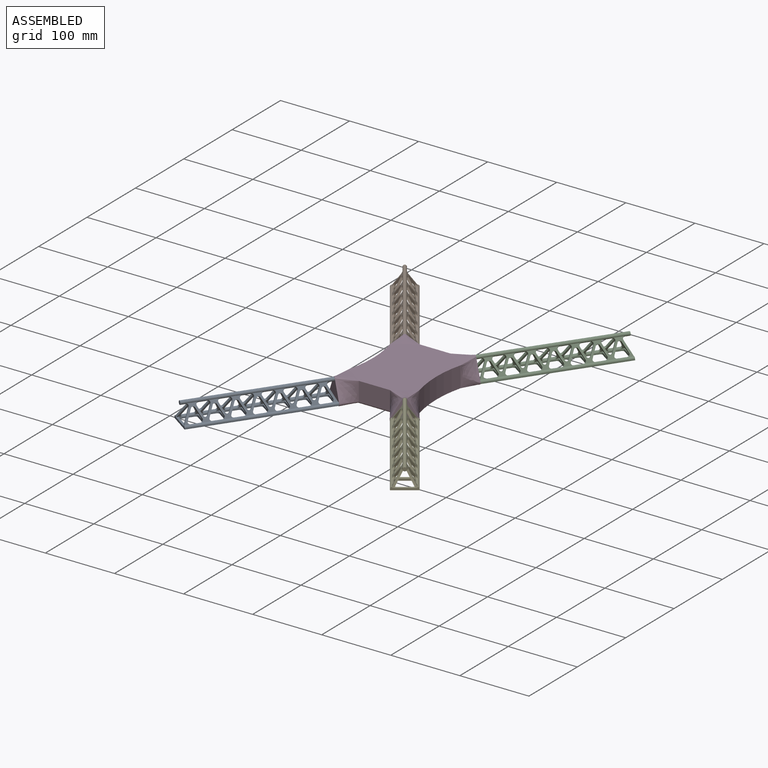
[diagram: assembled view]
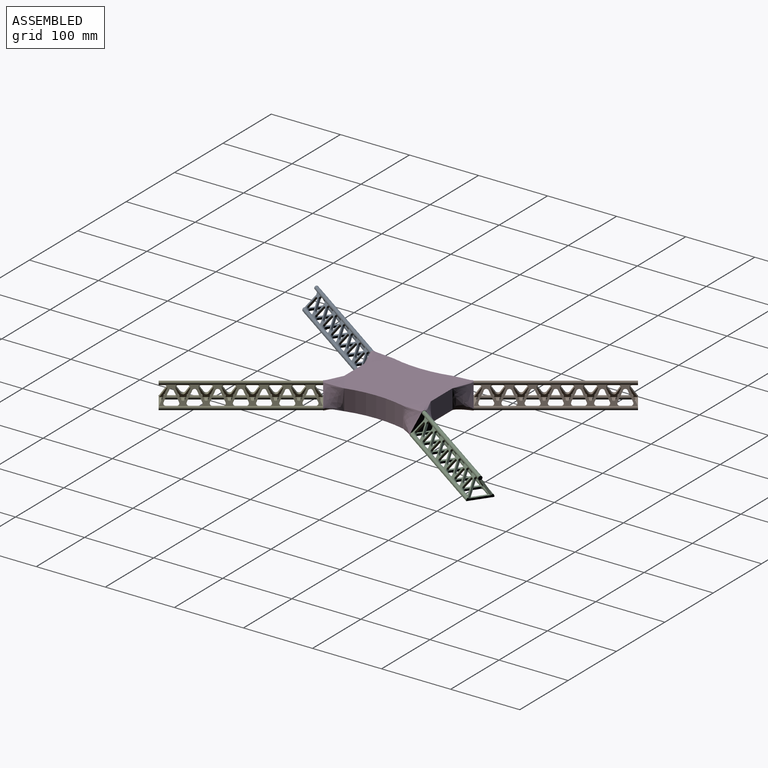
[diagram: assembled view, second angle]
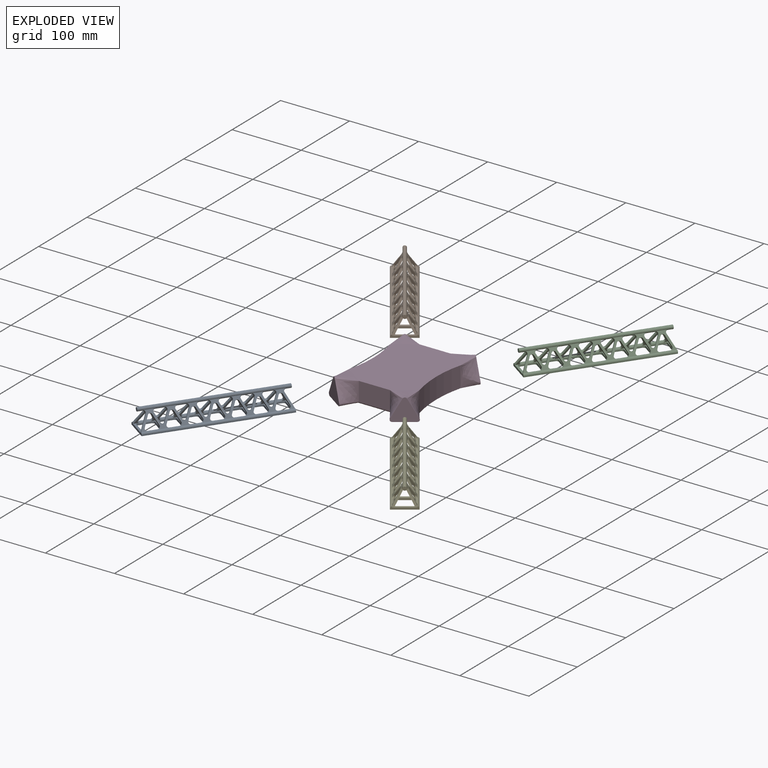
[diagram: exploded view]
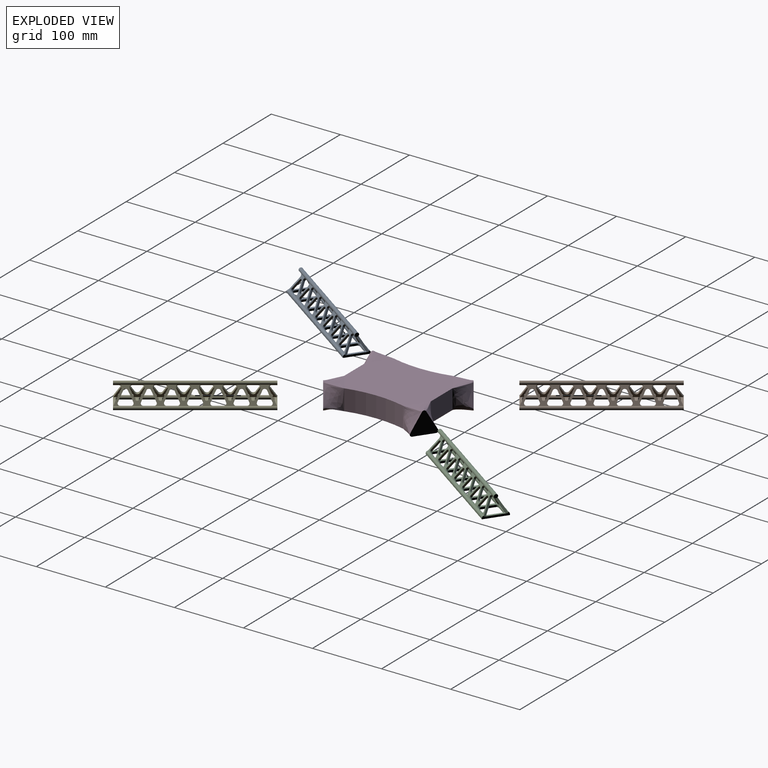
[diagram: exploded view, second angle]
ASSEMBLY  parts=5 mates=4
PART A: 248 faces, bbox 35.7x195.3x30.4 mm
  f0: cylinder r=2.7mm len=195mm, axis (0,1,0), area 1239.5mm2, adj f6,f10,f12,f13,f26,f27,f29,f32
  f1: cylinder r=2.7mm len=195mm, axis (0,1,0), area 1239.5mm2, adj f7,f10,f14,f15,f19,f21,f22,f23
  f2: plane 12.76x9.1mm, normal (-0.21,0.91,0.36), area 42.4mm2, adj f17,f21,f36,f236
  f3: plane 12.76x9.1mm, normal (0.21,0.91,0.36), area 42.4mm2, adj f29,f33,f37,f237
  f4: plane 24.99x7.66mm, normal (0,0,1), area 107.2mm2, adj f9,f36,f37,f39,f45,f51,f72,f74
  f5: plane 29.38x5.17mm, normal (0,0,1), area 85.7mm2, adj f8,f10,f19,f32,f36,f37,f41,f43
  f6: plane 0.97x0.38mm, normal (1,0,0), area 0.2mm2, adj f0,f10,f32
  f7: plane 0.97x0.38mm, normal (-1,0,0), area 0.2mm2, adj f1,f10,f19
  f8: plane 19x3mm, normal (0,1,0), area 56mm2, adj f5,f11,f40,f41,f42,f43
  f9: plane 19x3mm, normal (0,-1,0), area 56mm2, adj f4,f11,f38,f39,f44,f45
  f10: plane 35.4x4.2mm, normal (0,-1,0), area 109.6mm2, adj f0,f1,f5,f6,f7,f11,f13,f14
  f11: plane 195x35.4mm, normal (0,0,-1), area 2925.9mm2, adj f8,f9,f10,f12,f13,f14,f15,f38
  f12: plane 17.41x1.5mm, normal (1,0,0), area 26.1mm2, adj f0,f11,f42,f44
  f13: plane 195x1.5mm, normal (-1,0,0), area 292.5mm2, adj f0,f10,f11,f208
  f14: plane 195x1.5mm, normal (1,0,0), area 292.5mm2, adj f1,f10,f11,f208
  f15: plane 17.41x1.5mm, normal (-1,0,0), area 26.1mm2, adj f1,f11,f38,f40
  f16: bspline ~6.15x5.7mm, area 18.7mm2, adj f19,f21,f34,f35,f36
  f17: bspline ~6.15x5.7mm, area 18.7mm2, adj f2,f21,f33,f35,f36
  f18: plane 14.06x9.85mm, normal (0.21,0.91,-0.36), area 47.4mm2, adj f21,f22,f24,f36
  f19: plane 19.39x13.11mm, normal (-0.21,-0.91,0.36), area 69.8mm2, adj f1,f5,f7,f10,f16,f21,f36
  f20: plane 14.06x9.85mm, normal (0.21,-0.91,-0.36), area 47.4mm2, adj f21,f23,f24,f36
  f21: plane 194.32x22.09mm, normal (0.87,0,0.5), area 1431.9mm2, adj f1,f2,f16,f17,f18,f19,f20,f22
  f22: bspline ~6.16x5.7mm, area 18.7mm2, adj f1,f18,f21,f36
  f23: bspline ~6.16x5.7mm, area 18.7mm2, adj f1,f20,f21,f36
  f24: cylinder r=3mm len=5.46mm, axis (-0.87,0,-0.5), area 20.6mm2, adj f18,f20,f21,f36
  f25: cylinder r=3mm len=5.46mm, axis (0.87,0,-0.5), area 20.6mm2, adj f29,f30,f31,f37
  f26: bspline ~6.16x5.7mm, area 18.7mm2, adj f0,f29,f30,f37
  f27: bspline ~6.16x5.7mm, area 18.7mm2, adj f0,f29,f31,f37
  f28: plane 5.4x5.4mm, normal (0,-1,0), area 22.9mm2, adj f35
  f29: plane 194.32x22.09mm, normal (-0.87,0,0.5), area 1431.9mm2, adj f0,f3,f25,f26,f27,f30,f31,f32
  f30: plane 14.06x9.85mm, normal (-0.21,0.91,-0.36), area 47.4mm2, adj f25,f26,f29,f37
  f31: plane 14.06x9.85mm, normal (-0.21,-0.91,-0.36), area 47.4mm2, adj f25,f27,f29,f37
  f32: plane 19.39x13.11mm, normal (0.21,-0.91,0.36), area 69.8mm2, adj f0,f5,f6,f10,f29,f34,f37
  f33: bspline ~6.15x5.7mm, area 18.7mm2, adj f3,f17,f29,f35,f37
  f34: bspline ~6.15x5.7mm, area 18.7mm2, adj f16,f29,f32,f35,f37
  f35: cylinder r=2.7mm len=195mm, axis (0,-1,0), area 2673.6mm2, adj f16,f17,f21,f28,f29,f33,f34,f55
  f36: plane 194.25x22.04mm, normal (-0.87,0,-0.5), area 1378mm2, adj f1,f2,f4,f5,f16,f17,f18,f19
  f37: plane 194.25x22.04mm, normal (0.87,0,-0.5), area 1378mm2, adj f0,f3,f4,f5,f25,f26,f27,f30
  f38: cylinder r=3mm len=3mm, axis (0,0,1), area 7.1mm2, adj f9,f11,f15,f39
  f39: torus R=5.7mm, axis (0,1,0), area 7.2mm2, adj f1,f4,f9,f36,f38
  f40: cylinder r=3mm len=3mm, axis (0,0,-1), area 7.1mm2, adj f8,f11,f15,f41
  f41: torus R=5.7mm, axis (0,1,0), area 7.2mm2, adj f1,f5,f8,f36,f40
  f42: cylinder r=3mm len=3mm, axis (0,0,1), area 7.1mm2, adj f8,f11,f12,f43
  f43: torus R=5.7mm, axis (0,1,0), area 7.2mm2, adj f0,f5,f8,f37,f42
  f44: cylinder r=3mm len=3mm, axis (0,0,-1), area 7.1mm2, adj f9,f11,f12,f45
  f45: torus R=5.7mm, axis (0,1,0), area 7.2mm2, adj f0,f4,f9,f37,f44
  f46: plane 12.76x9.1mm, normal (-0.21,-0.91,0.36), area 42.4mm2, adj f21,f36,f55,f236
  f47: plane 12.76x9.1mm, normal (0.21,-0.91,0.36), area 42.4mm2, adj f29,f37,f68,f237
  f48: plane 12.76x9.1mm, normal (-0.21,0.91,0.36), area 42.4mm2, adj f21,f36,f56,f238
  f49: plane 12.76x9.1mm, normal (0.21,0.91,0.36), area 42.4mm2, adj f29,f37,f67,f239
  f50: plane 24.99x7.66mm, normal (0,0,1), area 107.2mm2, adj f36,f37,f52,f70,f76,f82,f103,f105
  f51: plane 19x3mm, normal (0,1,0), area 56mm2, adj f4,f11,f71,f72,f73,f74
  f52: plane 19x3mm, normal (0,-1,0), area 56mm2, adj f11,f50,f69,f70,f75,f76
  f53: plane 17.41x1.5mm, normal (1,0,0), area 26.1mm2, adj f0,f11,f73,f75
  f54: plane 17.41x1.5mm, normal (-1,0,0), area 26.1mm2, adj f1,f11,f69,f71
  f55: bspline ~6.15x5.7mm, area 18.7mm2, adj f21,f35,f36,f46,f68
  f56: bspline ~6.15x5.7mm, area 18.7mm2, adj f21,f35,f36,f48,f67
  f57: plane 14.06x9.85mm, normal (0.21,0.91,-0.36), area 47.4mm2, adj f21,f36,f59,f61
  f58: plane 14.06x9.85mm, normal (0.21,-0.91,-0.36), area 47.4mm2, adj f21,f36,f60,f61
  f59: bspline ~6.16x5.7mm, area 18.7mm2, adj f1,f21,f36,f57
  f60: bspline ~6.16x5.7mm, area 18.7mm2, adj f1,f21,f36,f58
  f61: cylinder r=3mm len=5.46mm, axis (-0.87,0,-0.5), area 20.6mm2, adj f21,f36,f57,f58
  f62: cylinder r=3mm len=5.46mm, axis (0.87,0,-0.5), area 20.6mm2, adj f29,f37,f65,f66
  f63: bspline ~6.16x5.7mm, area 18.7mm2, adj f0,f29,f37,f65
  f64: bspline ~6.16x5.7mm, area 18.7mm2, adj f0,f29,f37,f66
  f65: plane 14.06x9.85mm, normal (-0.21,0.91,-0.36), area 47.4mm2, adj f29,f37,f62,f63
  f66: plane 14.06x9.85mm, normal (-0.21,-0.91,-0.36), area 47.4mm2, adj f29,f37,f62,f64
  f67: bspline ~6.15x5.7mm, area 18.7mm2, adj f29,f35,f37,f49,f56
  f68: bspline ~6.15x5.7mm, area 18.7mm2, adj f29,f35,f37,f47,f55
  f69: cylinder r=3mm len=3mm, axis (0,0,1), area 7.1mm2, adj f11,f52,f54,f70
  f70: torus R=5.7mm, axis (0,1,0), area 7.2mm2, adj f1,f36,f50,f52,f69
  f71: cylinder r=3mm len=3mm, axis (0,0,-1), area 7.1mm2, adj f11,f51,f54,f72
  f72: torus R=5.7mm, axis (0,1,0), area 7.2mm2, adj f1,f4,f36,f51,f71
  f73: cylinder r=3mm len=3mm, axis (0,0,1), area 7.1mm2, adj f11,f51,f53,f74
  f74: torus R=5.7mm, axis (0,1,0), area 7.2mm2, adj f0,f4,f37,f51,f73
  f75: cylinder r=3mm len=3mm, axis (0,0,-1), area 7.1mm2, adj f11,f52,f53,f76
  f76: torus R=5.7mm, axis (0,1,0), area 7.2mm2, adj f0,f37,f50,f52,f75
  f77: plane 12.76x9.1mm, normal (-0.21,-0.91,0.36), area 42.4mm2, adj f21,f36,f86,f238
  f78: plane 12.76x9.1mm, normal (0.21,-0.91,0.36), area 42.4mm2, adj f29,f37,f99,f239
  f79: plane 12.76x9.1mm, normal (-0.21,0.91,0.36), area 42.4mm2, adj f21,f36,f87,f240
  f80: plane 12.76x9.1mm, normal (0.21,0.91,0.36), area 42.4mm2, adj f29,f37,f98,f241
  f81: plane 24.99x7.66mm, normal (0,0,1), area 107.2mm2, adj f36,f37,f83,f101,f107,f113,f134,f136
  f82: plane 19x3mm, normal (0,1,0), area 56mm2, adj f11,f50,f102,f103,f104,f105
  f83: plane 19x3mm, normal (0,-1,0), area 56mm2, adj f11,f81,f100,f101,f106,f107
  f84: plane 17.41x1.5mm, normal (1,0,0), area 26.1mm2, adj f0,f11,f104,f106
  f85: plane 17.41x1.5mm, normal (-1,0,0), area 26.1mm2, adj f1,f11,f100,f102
  f86: bspline ~6.15x5.7mm, area 18.7mm2, adj f21,f35,f36,f77,f99
  f87: bspline ~6.15x5.7mm, area 18.7mm2, adj f21,f35,f36,f79,f98
  f88: plane 14.06x9.85mm, normal (0.21,0.91,-0.36), area 47.4mm2, adj f21,f36,f90,f92
  f89: plane 14.06x9.85mm, normal (0.21,-0.91,-0.36), area 47.4mm2, adj f21,f36,f91,f92
  f90: bspline ~6.16x5.7mm, area 18.7mm2, adj f1,f21,f36,f88
  f91: bspline ~6.16x5.7mm, area 18.7mm2, adj f1,f21,f36,f89
  f92: cylinder r=3mm len=5.46mm, axis (-0.87,0,-0.5), area 20.6mm2, adj f21,f36,f88,f89
  f93: cylinder r=3mm len=5.46mm, axis (0.87,0,-0.5), area 20.6mm2, adj f29,f37,f96,f97
  f94: bspline ~6.16x5.7mm, area 18.7mm2, adj f0,f29,f37,f96
  f95: bspline ~6.16x5.7mm, area 18.7mm2, adj f0,f29,f37,f97
  f96: plane 14.06x9.85mm, normal (-0.21,0.91,-0.36), area 47.4mm2, adj f29,f37,f93,f94
  f97: plane 14.06x9.85mm, normal (-0.21,-0.91,-0.36), area 47.4mm2, adj f29,f37,f93,f95
  f98: bspline ~6.15x5.7mm, area 18.7mm2, adj f29,f35,f37,f80,f87
  f99: bspline ~6.15x5.7mm, area 18.7mm2, adj f29,f35,f37,f78,f86
  f100: cylinder r=3mm len=3mm, axis (0,0,1), area 7.1mm2, adj f11,f83,f85,f101
  f101: torus R=5.7mm, axis (0,1,0), area 7.2mm2, adj f1,f36,f81,f83,f100
  f102: cylinder r=3mm len=3mm, axis (0,0,-1), area 7.1mm2, adj f11,f82,f85,f103
  f103: torus R=5.7mm, axis (0,1,0), area 7.2mm2, adj f1,f36,f50,f82,f102
  f104: cylinder r=3mm len=3mm, axis (0,0,1), area 7.1mm2, adj f11,f82,f84,f105
  f105: torus R=5.7mm, axis (0,1,0), area 7.2mm2, adj f0,f37,f50,f82,f104
  f106: cylinder r=3mm len=3mm, axis (0,0,-1), area 7.1mm2, adj f11,f83,f84,f107
  f107: torus R=5.7mm, axis (0,1,0), area 7.2mm2, adj f0,f37,f81,f83,f106
  f108: plane 12.76x9.1mm, normal (-0.21,-0.91,0.36), area 42.4mm2, adj f21,f36,f117,f240
  f109: plane 12.76x9.1mm, normal (0.21,-0.91,0.36), area 42.4mm2, adj f29,f37,f130,f241
  f110: plane 12.76x9.1mm, normal (-0.21,0.91,0.36), area 42.4mm2, adj f21,f36,f118,f242
  f111: plane 12.76x9.1mm, normal (0.21,0.91,0.36), area 42.4mm2, adj f29,f37,f129,f243
  f112: plane 24.99x7.66mm, normal (0,0,1), area 107.2mm2, adj f36,f37,f114,f132,f138,f144,f165,f167
  f113: plane 19x3mm, normal (0,1,0), area 56mm2, adj f11,f81,f133,f134,f135,f136
  f114: plane 19x3mm, normal (0,-1,0), area 56mm2, adj f11,f112,f131,f132,f137,f138
  f115: plane 17.41x1.5mm, normal (1,0,0), area 26.1mm2, adj f0,f11,f135,f137
  f116: plane 17.41x1.5mm, normal (-1,0,0), area 26.1mm2, adj f1,f11,f131,f133
  f117: bspline ~6.15x5.7mm, area 18.7mm2, adj f21,f35,f36,f108,f130
  f118: bspline ~6.15x5.7mm, area 18.7mm2, adj f21,f35,f36,f110,f129
  f119: plane 14.06x9.85mm, normal (0.21,0.91,-0.36), area 47.4mm2, adj f21,f36,f121,f123
  f120: plane 14.06x9.85mm, normal (0.21,-0.91,-0.36), area 47.4mm2, adj f21,f36,f122,f123
  f121: bspline ~6.16x5.7mm, area 18.7mm2, adj f1,f21,f36,f119
  f122: bspline ~6.16x5.7mm, area 18.7mm2, adj f1,f21,f36,f120
  f123: cylinder r=3mm len=5.46mm, axis (-0.87,0,-0.5), area 20.6mm2, adj f21,f36,f119,f120
  f124: cylinder r=3mm len=5.46mm, axis (0.87,0,-0.5), area 20.6mm2, adj f29,f37,f127,f128
  f125: bspline ~6.16x5.7mm, area 18.7mm2, adj f0,f29,f37,f127
  f126: bspline ~6.16x5.7mm, area 18.7mm2, adj f0,f29,f37,f128
  f127: plane 14.06x9.85mm, normal (-0.21,0.91,-0.36), area 47.4mm2, adj f29,f37,f124,f125
  f128: plane 14.06x9.85mm, normal (-0.21,-0.91,-0.36), area 47.4mm2, adj f29,f37,f124,f126
  f129: bspline ~6.15x5.7mm, area 18.7mm2, adj f29,f35,f37,f111,f118
  f130: bspline ~6.15x5.7mm, area 18.7mm2, adj f29,f35,f37,f109,f117
  f131: cylinder r=3mm len=3mm, axis (0,0,1), area 7.1mm2, adj f11,f114,f116,f132
  f132: torus R=5.7mm, axis (0,1,0), area 7.2mm2, adj f1,f36,f112,f114,f131
  f133: cylinder r=3mm len=3mm, axis (0,0,-1), area 7.1mm2, adj f11,f113,f116,f134
  f134: torus R=5.7mm, axis (0,1,0), area 7.2mm2, adj f1,f36,f81,f113,f133
  f135: cylinder r=3mm len=3mm, axis (0,0,1), area 7.1mm2, adj f11,f113,f115,f136
  f136: torus R=5.7mm, axis (0,1,0), area 7.2mm2, adj f0,f37,f81,f113,f135
  f137: cylinder r=3mm len=3mm, axis (0,0,-1), area 7.1mm2, adj f11,f114,f115,f138
  f138: torus R=5.7mm, axis (0,1,0), area 7.2mm2, adj f0,f37,f112,f114,f137
  f139: plane 12.76x9.1mm, normal (-0.21,-0.91,0.36), area 42.4mm2, adj f21,f36,f148,f242
  f140: plane 12.76x9.1mm, normal (0.21,-0.91,0.36), area 42.4mm2, adj f29,f37,f161,f243
  f141: plane 12.76x9.1mm, normal (-0.21,0.91,0.36), area 42.4mm2, adj f21,f36,f149,f244
  f142: plane 12.76x9.1mm, normal (0.21,0.91,0.36), area 42.4mm2, adj f29,f37,f160,f245
  f143: plane 24.99x7.66mm, normal (0,0,1), area 107.2mm2, adj f36,f37,f145,f163,f169,f175,f196,f198
  f144: plane 19x3mm, normal (0,1,0), area 56mm2, adj f11,f112,f164,f165,f166,f167
  f145: plane 19x3mm, normal (0,-1,0), area 56mm2, adj f11,f143,f162,f163,f168,f169
  f146: plane 17.41x1.5mm, normal (1,0,0), area 26.1mm2, adj f0,f11,f166,f168
  f147: plane 17.41x1.5mm, normal (-1,0,0), area 26.1mm2, adj f1,f11,f162,f164
  f148: bspline ~6.15x5.7mm, area 18.7mm2, adj f21,f35,f36,f139,f161
  f149: bspline ~6.15x5.7mm, area 18.7mm2, adj f21,f35,f36,f141,f160
  f150: plane 14.06x9.85mm, normal (0.21,0.91,-0.36), area 47.4mm2, adj f21,f36,f152,f154
  f151: plane 14.06x9.85mm, normal (0.21,-0.91,-0.36), area 47.4mm2, adj f21,f36,f153,f154
  f152: bspline ~6.16x5.7mm, area 18.7mm2, adj f1,f21,f36,f150
  f153: bspline ~6.16x5.7mm, area 18.7mm2, adj f1,f21,f36,f151
  f154: cylinder r=3mm len=5.46mm, axis (-0.87,0,-0.5), area 20.6mm2, adj f21,f36,f150,f151
  f155: cylinder r=3mm len=5.46mm, axis (0.87,0,-0.5), area 20.6mm2, adj f29,f37,f158,f159
  f156: bspline ~6.16x5.7mm, area 18.7mm2, adj f0,f29,f37,f158
  f157: bspline ~6.16x5.7mm, area 18.7mm2, adj f0,f29,f37,f159
  f158: plane 14.06x9.85mm, normal (-0.21,0.91,-0.36), area 47.4mm2, adj f29,f37,f155,f156
  f159: plane 14.06x9.85mm, normal (-0.21,-0.91,-0.36), area 47.4mm2, adj f29,f37,f155,f157
  f160: bspline ~6.15x5.7mm, area 18.7mm2, adj f29,f35,f37,f142,f149
  f161: bspline ~6.15x5.7mm, area 18.7mm2, adj f29,f35,f37,f140,f148
  f162: cylinder r=3mm len=3mm, axis (0,0,1), area 7.1mm2, adj f11,f145,f147,f163
  f163: torus R=5.7mm, axis (0,1,0), area 7.2mm2, adj f1,f36,f143,f145,f162
  f164: cylinder r=3mm len=3mm, axis (0,0,-1), area 7.1mm2, adj f11,f144,f147,f165
  f165: torus R=5.7mm, axis (0,1,0), area 7.2mm2, adj f1,f36,f112,f144,f164
  f166: cylinder r=3mm len=3mm, axis (0,0,1), area 7.1mm2, adj f11,f144,f146,f167
  f167: torus R=5.7mm, axis (0,1,0), area 7.2mm2, adj f0,f37,f112,f144,f166
  f168: cylinder r=3mm len=3mm, axis (0,0,-1), area 7.1mm2, adj f11,f145,f146,f169
  f169: torus R=5.7mm, axis (0,1,0), area 7.2mm2, adj f0,f37,f143,f145,f168
  f170: plane 12.76x9.1mm, normal (-0.21,-0.91,0.36), area 42.4mm2, adj f21,f36,f179,f244
  f171: plane 12.76x9.1mm, normal (0.21,-0.91,0.36), area 42.4mm2, adj f29,f37,f192,f245
  f172: plane 12.76x9.1mm, normal (-0.21,0.91,0.36), area 42.4mm2, adj f21,f36,f180,f246
  f173: plane 12.76x9.1mm, normal (0.21,0.91,0.36), area 42.4mm2, adj f29,f37,f191,f247
  f174: plane 24.99x7.66mm, normal (0,0,1), area 107.2mm2, adj f36,f37,f176,f194,f200,f206,f231,f233
  f175: plane 19x3mm, normal (0,1,0), area 56mm2, adj f11,f143,f195,f196,f197,f198
  f176: plane 19x3mm, normal (0,-1,0), area 56mm2, adj f11,f174,f193,f194,f199,f200
  f177: plane 17.41x1.5mm, normal (1,0,0), area 26.1mm2, adj f0,f11,f197,f199
  f178: plane 17.41x1.5mm, normal (-1,0,0), area 26.1mm2, adj f1,f11,f193,f195
  f179: bspline ~6.15x5.7mm, area 18.7mm2, adj f21,f35,f36,f170,f192
  f180: bspline ~6.15x5.7mm, area 18.7mm2, adj f21,f35,f36,f172,f191
  f181: plane 14.06x9.85mm, normal (0.21,0.91,-0.36), area 47.4mm2, adj f21,f36,f183,f185
  f182: plane 14.06x9.85mm, normal (0.21,-0.91,-0.36), area 47.4mm2, adj f21,f36,f184,f185
  f183: bspline ~6.16x5.7mm, area 18.7mm2, adj f1,f21,f36,f181
  f184: bspline ~6.16x5.7mm, area 18.7mm2, adj f1,f21,f36,f182
  f185: cylinder r=3mm len=5.46mm, axis (-0.87,0,-0.5), area 20.6mm2, adj f21,f36,f181,f182
  f186: cylinder r=3mm len=5.46mm, axis (0.87,0,-0.5), area 20.6mm2, adj f29,f37,f189,f190
  f187: bspline ~6.16x5.7mm, area 18.7mm2, adj f0,f29,f37,f189
  f188: bspline ~6.16x5.7mm, area 18.7mm2, adj f0,f29,f37,f190
  f189: plane 14.06x9.85mm, normal (-0.21,0.91,-0.36), area 47.4mm2, adj f29,f37,f186,f187
  f190: plane 14.06x9.85mm, normal (-0.21,-0.91,-0.36), area 47.4mm2, adj f29,f37,f186,f188
  f191: bspline ~6.15x5.7mm, area 18.7mm2, adj f29,f35,f37,f173,f180
  f192: bspline ~6.15x5.7mm, area 18.7mm2, adj f29,f35,f37,f171,f179
  f193: cylinder r=3mm len=3mm, axis (0,0,1), area 7.1mm2, adj f11,f176,f178,f194
  f194: torus R=5.7mm, axis (0,1,0), area 7.2mm2, adj f1,f36,f174,f176,f193
  f195: cylinder r=3mm len=3mm, axis (0,0,-1), area 7.1mm2, adj f11,f175,f178,f196
  f196: torus R=5.7mm, axis (0,1,0), area 7.2mm2, adj f1,f36,f143,f175,f195
  f197: cylinder r=3mm len=3mm, axis (0,0,1), area 7.1mm2, adj f11,f175,f177,f198
  f198: torus R=5.7mm, axis (0,1,0), area 7.2mm2, adj f0,f37,f143,f175,f197
  f199: cylinder r=3mm len=3mm, axis (0,0,-1), area 7.1mm2, adj f11,f176,f177,f200
  f200: torus R=5.7mm, axis (0,1,0), area 7.2mm2, adj f0,f37,f174,f176,f199
  f201: plane 12.76x9.1mm, normal (-0.21,-0.91,0.36), area 42.4mm2, adj f21,f36,f211,f246
  f202: plane 12.76x9.1mm, normal (0.21,-0.91,0.36), area 42.4mm2, adj f29,f37,f227,f247
  f203: plane 29.38x5.17mm, normal (0,0,1), area 85.7mm2, adj f36,f37,f207,f208,f214,f225,f229,f235
  f204: plane 0.97x0.38mm, normal (1,0,0), area 0.2mm2, adj f0,f208,f225
  f205: plane 0.97x0.38mm, normal (-1,0,0), area 0.2mm2, adj f1,f208,f214
  f206: plane 19x3mm, normal (0,1,0), area 56mm2, adj f11,f174,f230,f231,f232,f233
  f207: plane 19x3mm, normal (0,-1,0), area 56mm2, adj f11,f203,f228,f229,f234,f235
  f208: plane 35.4x4.2mm, normal (0,1,0), area 109.6mm2, adj f0,f1,f11,f13,f14,f203,f204,f205
  f209: plane 17.41x1.5mm, normal (1,0,0), area 26.1mm2, adj f0,f11,f232,f234
  f210: plane 17.41x1.5mm, normal (-1,0,0), area 26.1mm2, adj f1,f11,f228,f230
  f211: bspline ~6.15x5.7mm, area 18.7mm2, adj f21,f35,f36,f201,f227
  f212: bspline ~6.15x5.7mm, area 18.7mm2, adj f21,f35,f36,f214,f226
  f213: plane 14.06x9.85mm, normal (0.21,0.91,-0.36), area 47.4mm2, adj f21,f36,f216,f218
  f214: plane 19.39x13.11mm, normal (-0.21,0.91,0.36), area 69.8mm2, adj f1,f21,f36,f203,f205,f208,f212
  f215: plane 14.06x9.85mm, normal (0.21,-0.91,-0.36), area 47.4mm2, adj f21,f36,f217,f218
  f216: bspline ~6.16x5.7mm, area 18.7mm2, adj f1,f21,f36,f213
  f217: bspline ~6.16x5.7mm, area 18.7mm2, adj f1,f21,f36,f215
  f218: cylinder r=3mm len=5.46mm, axis (-0.87,0,-0.5), area 20.6mm2, adj f21,f36,f213,f215
  f219: cylinder r=3mm len=5.46mm, axis (0.87,0,-0.5), area 20.6mm2, adj f29,f37,f223,f224
  f220: bspline ~6.16x5.7mm, area 18.7mm2, adj f0,f29,f37,f223
  f221: bspline ~6.16x5.7mm, area 18.7mm2, adj f0,f29,f37,f224
  f222: plane 5.4x5.4mm, normal (0,1,0), area 22.9mm2, adj f35
  f223: plane 14.06x9.85mm, normal (-0.21,0.91,-0.36), area 47.4mm2, adj f29,f37,f219,f220
  f224: plane 14.06x9.85mm, normal (-0.21,-0.91,-0.36), area 47.4mm2, adj f29,f37,f219,f221
  f225: plane 19.39x13.11mm, normal (0.21,0.91,0.36), area 69.8mm2, adj f0,f29,f37,f203,f204,f208,f226
  f226: bspline ~6.15x5.7mm, area 18.7mm2, adj f29,f35,f37,f212,f225
  f227: bspline ~6.15x5.7mm, area 18.7mm2, adj f29,f35,f37,f202,f211
  f228: cylinder r=3mm len=3mm, axis (0,0,1), area 7.1mm2, adj f11,f207,f210,f229
  f229: torus R=5.7mm, axis (0,1,0), area 7.2mm2, adj f1,f36,f203,f207,f228
  f230: cylinder r=3mm len=3mm, axis (0,0,-1), area 7.1mm2, adj f11,f206,f210,f231
  f231: torus R=5.7mm, axis (0,1,0), area 7.2mm2, adj f1,f36,f174,f206,f230
  f232: cylinder r=3mm len=3mm, axis (0,0,1), area 7.1mm2, adj f11,f206,f209,f233
  f233: torus R=5.7mm, axis (0,1,0), area 7.2mm2, adj f0,f37,f174,f206,f232
  f234: cylinder r=3mm len=3mm, axis (0,0,-1), area 7.1mm2, adj f11,f207,f209,f235
  f235: torus R=5.7mm, axis (0,1,0), area 7.2mm2, adj f0,f37,f203,f207,f234
  f236: cylinder r=3mm len=5.46mm, axis (-0.87,0,-0.5), area 20.6mm2, adj f2,f21,f36,f46
  f237: cylinder r=3mm len=5.46mm, axis (-0.87,0,0.5), area 20.6mm2, adj f3,f29,f37,f47
  f238: cylinder r=3mm len=5.46mm, axis (-0.87,0,-0.5), area 20.6mm2, adj f21,f36,f48,f77
  f239: cylinder r=3mm len=5.46mm, axis (-0.87,0,0.5), area 20.6mm2, adj f29,f37,f49,f78
  f240: cylinder r=3mm len=5.46mm, axis (-0.87,0,-0.5), area 20.6mm2, adj f21,f36,f79,f108
  f241: cylinder r=3mm len=5.46mm, axis (-0.87,0,0.5), area 20.6mm2, adj f29,f37,f80,f109
  f242: cylinder r=3mm len=5.46mm, axis (-0.87,0,-0.5), area 20.6mm2, adj f21,f36,f110,f139
  f243: cylinder r=3mm len=5.46mm, axis (-0.87,0,0.5), area 20.6mm2, adj f29,f37,f111,f140
  f244: cylinder r=3mm len=5.46mm, axis (-0.87,0,-0.5), area 20.6mm2, adj f21,f36,f141,f170
  f245: cylinder r=3mm len=5.46mm, axis (-0.87,0,0.5), area 20.6mm2, adj f29,f37,f142,f171
  f246: cylinder r=3mm len=5.46mm, axis (-0.87,0,-0.5), area 20.6mm2, adj f21,f36,f172,f201
  f247: cylinder r=3mm len=5.46mm, axis (-0.87,0,0.5), area 20.6mm2, adj f29,f37,f173,f202
PART B: same geometry as A
PART C: same geometry as A
PART D: 25 faces, bbox 133.6x168.6x33.8 mm
  f0: cylinder r=171.16mm len=85.14mm, axis (0,0,-1), area 2581.2mm2, adj f4,f5,f10,f22
  f1: plane 46.78x28.78mm, normal (0,-1,0), area 1215mm2, adj f5,f6,f9,f14
  f2: cylinder r=171.16mm len=85.14mm, axis (0,0,-1), area 2581.2mm2, adj f4,f5,f13,f20
  f3: plane 45.98x27.98mm, normal (0,1,0), area 1215mm2, adj f5,f7,f18,f23
  f4: plane 164.78x128.33mm, normal (0,0,1), area 12818mm2, adj f0,f2,f6,f7,f9,f12,f13,f14
  f5: plane 125.29x102.34mm, normal (0,0,-1), area 11058.4mm2, adj f0,f1,f2,f3,f11,f15,f19,f24
  f6: cylinder r=3mm len=53.57mm, axis (-1,0,0), area 232.2mm2, adj f1,f4,f9,f14
  f7: cylinder r=3mm len=53.57mm, axis (1,0,0), area 232.2mm2, adj f3,f4,f18,f23
  f8: plane 33.77x31.28mm, normal (-0.57,-0.82,0), area 688mm2, adj f9,f10,f11
  f9: bspline ~43.42x40.84mm, area 1678.2mm2, adj f1,f4,f6,f8,f10,f11
  f10: bspline ~30.48x29.03mm, area 767.5mm2, adj f0,f8,f9,f11
  f11: bspline ~32.01x30.8mm, area 508.4mm2, adj f5,f8,f9,f10
  f12: plane 33.01x30.52mm, normal (0.57,-0.82,0), area 688mm2, adj f4,f13,f14,f15
  f13: bspline ~30.48x29.03mm, area 840.8mm2, adj f2,f4,f12,f15
  f14: bspline ~30.48x26.55mm, area 888.1mm2, adj f1,f4,f6,f12,f15
  f15: bspline ~32.01x30.8mm, area 508.4mm2, adj f5,f12,f13,f14
  f16: plane 32.98x30.49mm, normal (0.57,0.82,0), area 688mm2, adj f4,f17,f18,f19,f20
  f17: bspline ~39.34x39.3mm, area 239.3mm2, adj f4,f16,f20
  f18: bspline ~30.48x26.55mm, area 887.4mm2, adj f3,f4,f7,f16,f19
  f19: bspline ~32.01x30.8mm, area 508.4mm2, adj f5,f16,f18,f20
  f20: bspline ~30.48x29.03mm, area 767.5mm2, adj f2,f16,f17,f19
  f21: plane 33.01x30.52mm, normal (-0.57,0.82,0), area 688mm2, adj f4,f22,f23,f24
  f22: bspline ~30.48x29.03mm, area 840.8mm2, adj f0,f4,f21,f24
  f23: bspline ~30.48x26.55mm, area 888.1mm2, adj f3,f4,f7,f21,f24
  f24: bspline ~32.01x30.8mm, area 508.4mm2, adj f5,f21,f22,f23
PART E: same geometry as A
PLACE A rot(axis=(0,0,1),145deg) t=(-61.66,-82.52,3)mm
PLACE B rot(axis=(0,0,-1),145deg) t=(-156.3,223.39,3)mm
PLACE C rot(axis=(0,0,1),145deg) t=(152.53,223.39,3)mm
PLACE D rot(axis=(1,0,0),180deg) t=(-1.88,2.85,30)mm
PLACE E rot(axis=(0,0,-1),145deg) t=(57.89,-82.52,3)mm
MATE fastened E.f35 <-> D.f16  axis (-0.57,0.82,0) through (49.29,-70.23,28.98)mm
MATE fastened A.f35 <-> D.f21  axis (0.57,0.82,0) through (-53.06,-70.23,28.98)mm
MATE fastened B.f35 <-> D.f8  axis (0.57,-0.82,0) through (-53.06,75.94,28.98)mm
MATE fastened C.f35 <-> D.f12  axis (-0.57,-0.82,0) through (49.29,75.94,28.98)mm
